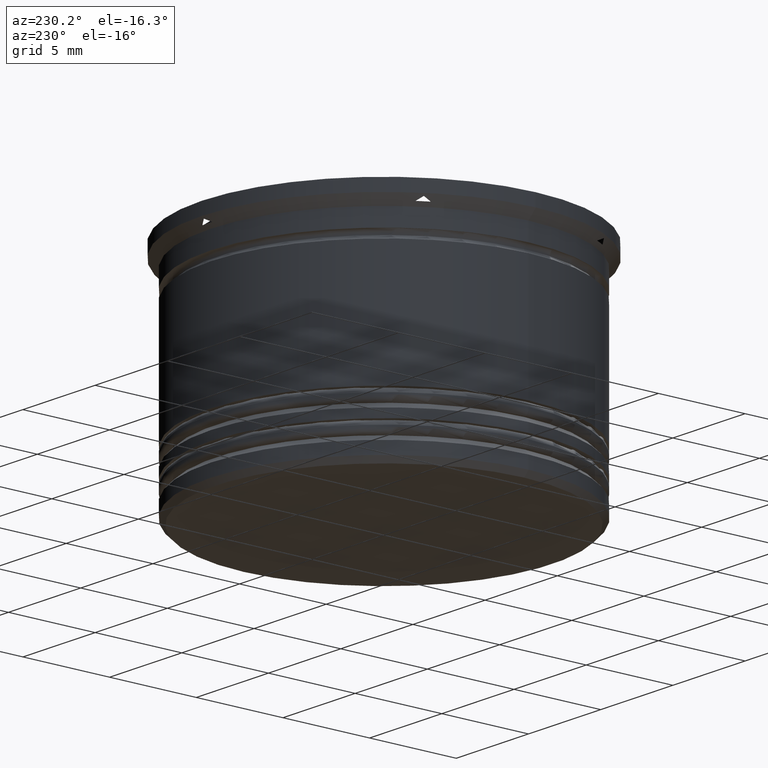
[diagram: clean part render]
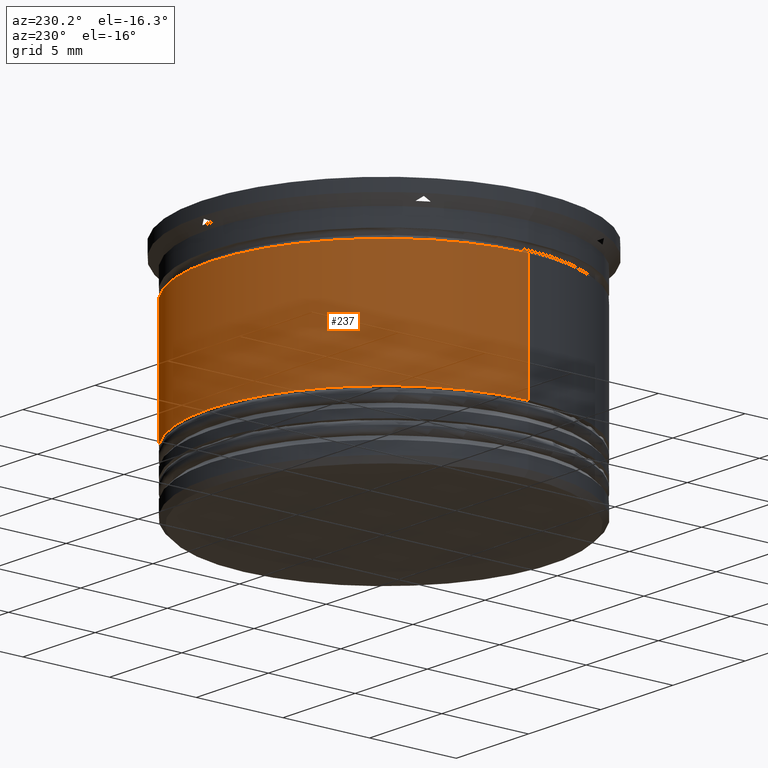
[diagram: same view with one face highlighted and labeled with its STEP entity id]
A machine part, auxiliary view. The second image highlights one B-rep face of the part: STEP entity #237.
In plain terms, the highlighted cylindrical surface (partial cylindrical patch) has radius 10 mm, axis along (-0, -0, 1).
Its self-contained STEP definition (entity closure, byte-faithful):
#6 = CARTESIAN_POINT ( 'NONE',  ( 0.000000000000000000, 0.000000000000000000, 0.000000000000000000 ) ) ;
#62 = VECTOR ( 'NONE', #1140, 1000.000000000000000 ) ;
#111 = VERTEX_POINT ( 'NONE', #1287 ) ;
#115 = CARTESIAN_POINT ( 'NONE',  ( 0.000000000000000000, 0.000000000000000000, -2.700000000000000178 ) ) ;
#124 = ORIENTED_EDGE ( 'NONE', *, *, #2112, .F. ) ;
#145 = ORIENTED_EDGE ( 'NONE', *, *, #475, .F. ) ;
#224 = DIRECTION ( 'NONE',  ( 1.000000000000000000, 0.000000000000000000, 0.000000000000000000 ) ) ;
#237 = ADVANCED_FACE ( 'NONE', ( #1504 ), #1662, .T. ) ;
#246 = AXIS2_PLACEMENT_3D ( 'NONE', #1547, #2047, #224 ) ;
#342 = VERTEX_POINT ( 'NONE', #1951 ) ;
#418 = AXIS2_PLACEMENT_3D ( 'NONE', #115, #2092, #438 ) ;
#438 = DIRECTION ( 'NONE',  ( 1.000000000000000000, 0.000000000000000000, 0.000000000000000000 ) ) ;
#475 = EDGE_CURVE ( 'NONE', #1972, #656, #633, .T. ) ;
#492 = DIRECTION ( 'NONE',  ( -0.000000000000000000, -0.000000000000000000, 1.000000000000000000 ) ) ;
#536 = DIRECTION ( 'NONE',  ( 1.000000000000000000, 0.000000000000000000, 0.000000000000000000 ) ) ;
#555 = EDGE_LOOP ( 'NONE', ( #891, #826, #124, #145 ) ) ;
#604 = CIRCLE ( 'NONE', #246, 10.00000000000000178 ) ;
#633 = LINE ( 'NONE', #1963, #1292 ) ;
#656 = VERTEX_POINT ( 'NONE', #2030 ) ;
#826 = ORIENTED_EDGE ( 'NONE', *, *, #874, .T. ) ;
#845 = AXIS2_PLACEMENT_3D ( 'NONE', #6, #492, #536 ) ;
#874 = EDGE_CURVE ( 'NONE', #111, #342, #1497, .T. ) ;
#891 = ORIENTED_EDGE ( 'NONE', *, *, #1792, .T. ) ;
#1105 = DIRECTION ( 'NONE',  ( -0.000000000000000000, -0.000000000000000000, 1.000000000000000000 ) ) ;
#1140 = DIRECTION ( 'NONE',  ( -0.000000000000000000, -0.000000000000000000, 1.000000000000000000 ) ) ;
#1287 = CARTESIAN_POINT ( 'NONE',  ( -10.00000000000000178, 1.224646799147353454E-15, -9.500000000000001776 ) ) ;
#1292 = VECTOR ( 'NONE', #1105, 1000.000000000000000 ) ;
#1497 = LINE ( 'NONE', #2141, #62 ) ;
#1504 = FACE_OUTER_BOUND ( 'NONE', #555, .T. ) ;
#1547 = CARTESIAN_POINT ( 'NONE',  ( 0.000000000000000000, 0.000000000000000000, -9.500000000000001776 ) ) ;
#1662 = CYLINDRICAL_SURFACE ( 'NONE', #845, 10.00000000000000000 ) ;
#1792 = EDGE_CURVE ( 'NONE', #1972, #111, #604, .T. ) ;
#1813 = CIRCLE ( 'NONE', #418, 9.999999999999998224 ) ;
#1951 = CARTESIAN_POINT ( 'NONE',  ( -9.999999999999998224, 1.224646799147353256E-15, -2.700000000000000178 ) ) ;
#1963 = CARTESIAN_POINT ( 'NONE',  ( 10.00000000000000000, 0.000000000000000000, 0.000000000000000000 ) ) ;
#1972 = VERTEX_POINT ( 'NONE', #2076 ) ;
#2030 = CARTESIAN_POINT ( 'NONE',  ( 9.999999999999998224, 0.000000000000000000, -2.700000000000000178 ) ) ;
#2047 = DIRECTION ( 'NONE',  ( -0.000000000000000000, -0.000000000000000000, 1.000000000000000000 ) ) ;
#2076 = CARTESIAN_POINT ( 'NONE',  ( 10.00000000000000178, 0.000000000000000000, -9.500000000000001776 ) ) ;
#2092 = DIRECTION ( 'NONE',  ( -0.000000000000000000, -0.000000000000000000, 1.000000000000000000 ) ) ;
#2112 = EDGE_CURVE ( 'NONE', #656, #342, #1813, .T. ) ;
#2141 = CARTESIAN_POINT ( 'NONE',  ( -10.00000000000000000, 1.224646799147353256E-15, 0.000000000000000000 ) ) ;